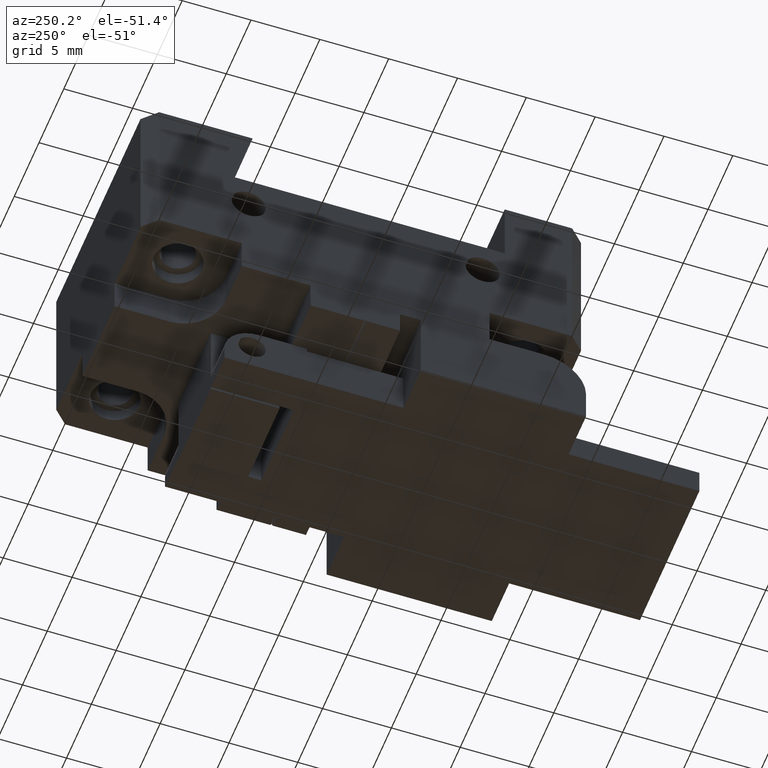
[diagram: clean part render]
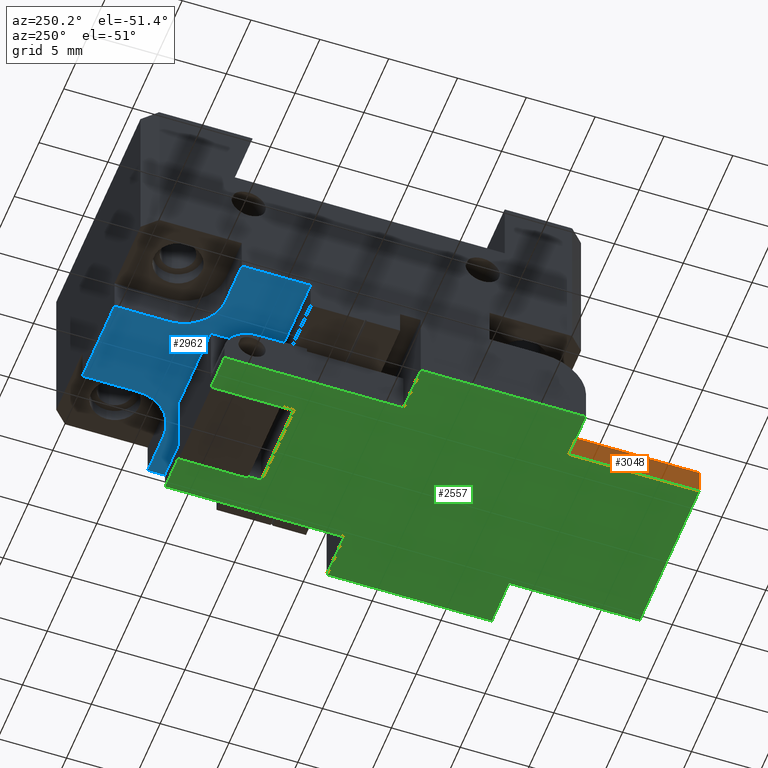
[diagram: same view with three faces highlighted in distinct colors, each labeled with its STEP entity id]
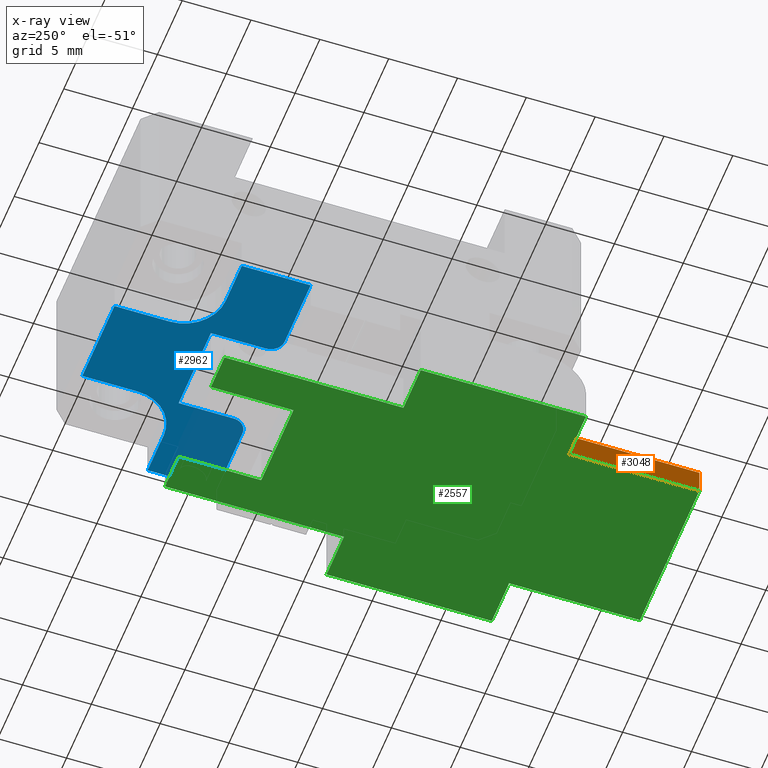
[diagram: x-ray of the same camera — body ghosted, the three highlighted faces saturated]
A machine part, auxiliary view with three faces highlighted in distinct colors.
The next image is the same camera in x-ray (body ghosted, the three faces saturated) — at least one of them is partly hidden behind the body in this view.
Their STEP definitions:

[orange] entity #3048 — the highlighted planar face has unit normal (-1, 0, 0).
#95 = LINE ( 'NONE', #1185, #2649 ) ;
#138 = CARTESIAN_POINT ( 'NONE',  ( -10.90605340999041000, -23.04697329500456600, 22.70000000000000600 ) ) ;
#404 = CARTESIAN_POINT ( 'NONE',  ( -10.90605340999041000, -5.796973295004572300, 22.70000000000000600 ) ) ;
#425 = ORIENTED_EDGE ( 'NONE', *, *, #1873, .F. ) ;
#445 = ORIENTED_EDGE ( 'NONE', *, *, #2481, .F. ) ;
#475 = DIRECTION ( 'NONE',  ( -0.0000000000000000000, -0.0000000000000000000, -1.000000000000000000 ) ) ;
#503 = VECTOR ( 'NONE', #475, 1000.000000000000000 ) ;
#537 = ORIENTED_EDGE ( 'NONE', *, *, #4050, .T. ) ;
#598 = VERTEX_POINT ( 'NONE', #3586 ) ;
#661 = VERTEX_POINT ( 'NONE', #2637 ) ;
#720 = PLANE ( 'NONE',  #2078 ) ;
#815 = CARTESIAN_POINT ( 'NONE',  ( -10.90605340999041000, -13.54697329500457300, 19.20000000000000600 ) ) ;
#839 = CARTESIAN_POINT ( 'NONE',  ( -10.90605340999041000, -5.796973295004572300, 17.20000000000000600 ) ) ;
#870 = CARTESIAN_POINT ( 'NONE',  ( -10.90605340999041000, -23.04697329500456600, 19.20000000000000600 ) ) ;
#960 = VERTEX_POINT ( 'NONE', #3447 ) ;
#1057 = DIRECTION ( 'NONE',  ( 0.0000000000000000000, 0.0000000000000000000, 1.000000000000000000 ) ) ;
#1185 = CARTESIAN_POINT ( 'NONE',  ( -10.90605340999041000, -13.54697329500457300, 22.70000000000000600 ) ) ;
#1873 = EDGE_CURVE ( 'NONE', #661, #598, #1965, .T. ) ;
#1965 = LINE ( 'NONE', #138, #503 ) ;
#2004 = VECTOR ( 'NONE', #3164, 1000.000000000000000 ) ;
#2078 = AXIS2_PLACEMENT_3D ( 'NONE', #404, #3057, #1057 ) ;
#2397 = EDGE_CURVE ( 'NONE', #598, #960, #2879, .T. ) ;
#2481 = EDGE_CURVE ( 'NONE', #3667, #661, #3434, .T. ) ;
#2528 = ORIENTED_EDGE ( 'NONE', *, *, #2397, .F. ) ;
#2569 = VECTOR ( 'NONE', #3867, 1000.000000000000000 ) ;
#2637 = CARTESIAN_POINT ( 'NONE',  ( -10.90605340999041000, -23.04697329500456600, 19.20000000000000600 ) ) ;
#2649 = VECTOR ( 'NONE', #4172, 1000.000000000000000 ) ;
#2879 = LINE ( 'NONE', #839, #2004 ) ;
#3048 = ADVANCED_FACE ( 'NONE', ( #4068 ), #720, .T. ) ;
#3057 = DIRECTION ( 'NONE',  ( -1.000000000000000000, 0.0000000000000000000, 0.0000000000000000000 ) ) ;
#3080 = EDGE_LOOP ( 'NONE', ( #445, #537, #2528, #425 ) ) ;
#3164 = DIRECTION ( 'NONE',  ( 0.0000000000000000000, 1.000000000000000000, -0.0000000000000000000 ) ) ;
#3434 = LINE ( 'NONE', #870, #2569 ) ;
#3447 = CARTESIAN_POINT ( 'NONE',  ( -10.90605340999041000, -13.54697329500457300, 17.20000000000000600 ) ) ;
#3586 = CARTESIAN_POINT ( 'NONE',  ( -10.90605340999041000, -23.04697329500456600, 17.20000000000000600 ) ) ;
#3667 = VERTEX_POINT ( 'NONE', #815 ) ;
#3867 = DIRECTION ( 'NONE',  ( -0.0000000000000000000, -1.000000000000000000, -0.0000000000000000000 ) ) ;
#4050 = EDGE_CURVE ( 'NONE', #3667, #960, #95, .T. ) ;
#4068 = FACE_OUTER_BOUND ( 'NONE', #3080, .T. ) ;
#4172 = DIRECTION ( 'NONE',  ( -0.0000000000000000000, -0.0000000000000000000, -1.000000000000000000 ) ) ;

[blue] entity #2962 — the highlighted planar face has unit normal (0, 0, -1).
#16 = PLANE ( 'NONE',  #3927 ) ;
#69 = VECTOR ( 'NONE', #108, 1000.000000000000000 ) ;
#108 = DIRECTION ( 'NONE',  ( -1.887379141862766100E-015, 1.000000000000000000, 0.0000000000000000000 ) ) ;
#128 = DIRECTION ( 'NONE',  ( -1.763470322150137200E-015, 1.000000000000000000, 0.0000000000000000000 ) ) ;
#131 = CARTESIAN_POINT ( 'NONE',  ( -1.656053409990433800, 11.45302670499541100, 23.10000000000000100 ) ) ;
#146 = AXIS2_PLACEMENT_3D ( 'NONE', #173, #2499, #507 ) ;
#173 = CARTESIAN_POINT ( 'NONE',  ( -0.6560534099904271600, 7.453026704995423300, 23.10000000000000100 ) ) ;
#192 = LINE ( 'NONE', #3610, #1859 ) ;
#215 = VERTEX_POINT ( 'NONE', #304 ) ;
#230 = DIRECTION ( 'NONE',  ( 0.0000000000000000000, 0.0000000000000000000, -1.000000000000000000 ) ) ;
#236 = VECTOR ( 'NONE', #3409, 1000.000000000000000 ) ;
#271 = CARTESIAN_POINT ( 'NONE',  ( -14.40605340999046500, 18.45302670499543000, 23.10000000000000100 ) ) ;
#304 = CARTESIAN_POINT ( 'NONE',  ( -14.40605340999046300, 11.45302670499545700, 23.10000000000000100 ) ) ;
#309 = CARTESIAN_POINT ( 'NONE',  ( 4.593946590009558400, 18.45302670499543800, 23.10000000000000100 ) ) ;
#319 = VERTEX_POINT ( 'NONE', #1420 ) ;
#339 = CARTESIAN_POINT ( 'NONE',  ( -8.156053409990464700, 18.45302670499543400, 23.10000000000000100 ) ) ;
#348 = DIRECTION ( 'NONE',  ( 0.0000000000000000000, 0.0000000000000000000, -1.000000000000000000 ) ) ;
#356 = DIRECTION ( 'NONE',  ( 1.763470322150137200E-015, -1.000000000000000000, -0.0000000000000000000 ) ) ;
#507 = DIRECTION ( 'NONE',  ( -1.000000000000000000, 1.734723475976807100E-015, 0.0000000000000000000 ) ) ;
#577 = VERTEX_POINT ( 'NONE', #4288 ) ;
#604 = LINE ( 'NONE', #4247, #3732 ) ;
#608 = LINE ( 'NONE', #3426, #3257 ) ;
#697 = VERTEX_POINT ( 'NONE', #3045 ) ;
#764 = CARTESIAN_POINT ( 'NONE',  ( 1.343946590009572800, 11.45302670499543800, 23.10000000000000100 ) ) ;
#767 = VERTEX_POINT ( 'NONE', #1544 ) ;
#808 = CIRCLE ( 'NONE', #3538, 1.000000000000000900 ) ;
#812 = LINE ( 'NONE', #339, #3358 ) ;
#936 = VERTEX_POINT ( 'NONE', #764 ) ;
#980 = CARTESIAN_POINT ( 'NONE',  ( -1.656053409990439800, 14.45302670499541300, 23.10000000000000100 ) ) ;
#1038 = VERTEX_POINT ( 'NONE', #3646 ) ;
#1056 = AXIS2_PLACEMENT_3D ( 'NONE', #1216, #3540, #1551 ) ;
#1109 = LINE ( 'NONE', #2098, #236 ) ;
#1112 = DIRECTION ( 'NONE',  ( -1.000000000000000000, 1.332267629550187800E-015, 0.0000000000000000000 ) ) ;
#1199 = VERTEX_POINT ( 'NONE', #1609 ) ;
#1214 = VERTEX_POINT ( 'NONE', #1877 ) ;
#1216 = CARTESIAN_POINT ( 'NONE',  ( 1.343946590009558900, 14.45302670499543600, 23.10000000000000100 ) ) ;
#1224 = CARTESIAN_POINT ( 'NONE',  ( -9.156053409990413200, 6.453026704995445500, 23.10000000000000100 ) ) ;
#1262 = DIRECTION ( 'NONE',  ( -0.0000000000000000000, -0.0000000000000000000, 1.000000000000000000 ) ) ;
#1285 = LINE ( 'NONE', #271, #3052 ) ;
#1313 = CARTESIAN_POINT ( 'NONE',  ( -11.15605340999044000, 11.45302670499543400, 23.10000000000000100 ) ) ;
#1317 = EDGE_CURVE ( 'NONE', #3436, #215, #3455, .T. ) ;
#1337 = EDGE_CURVE ( 'NONE', #697, #1830, #808, .T. ) ;
#1391 = EDGE_CURVE ( 'NONE', #1199, #215, #1285, .T. ) ;
#1392 = VECTOR ( 'NONE', #128, 1000.000000000000000 ) ;
#1415 = EDGE_CURVE ( 'NONE', #319, #697, #604, .T. ) ;
#1420 = CARTESIAN_POINT ( 'NONE',  ( -8.156053409990441600, 11.45302670499545900, 23.10000000000000100 ) ) ;
#1435 = CIRCLE ( 'NONE', #1743, 2.999999999999999100 ) ;
#1467 = EDGE_CURVE ( 'NONE', #1830, #1199, #192, .T. ) ;
#1469 = ORIENTED_EDGE ( 'NONE', *, *, #1415, .T. ) ;
#1471 = ORIENTED_EDGE ( 'NONE', *, *, #4186, .T. ) ;
#1478 = DIRECTION ( 'NONE',  ( -1.000000000000000000, 1.332267629550187800E-015, 0.0000000000000000000 ) ) ;
#1544 = CARTESIAN_POINT ( 'NONE',  ( 4.593946590009582400, 6.453026704995411800, 23.10000000000000100 ) ) ;
#1551 = DIRECTION ( 'NONE',  ( -1.000000000000000000, -8.673617379884035500E-015, 0.0000000000000000000 ) ) ;
#1609 = CARTESIAN_POINT ( 'NONE',  ( -14.40605340999041700, 6.453026704995457100, 23.10000000000000100 ) ) ;
#1743 = AXIS2_PLACEMENT_3D ( 'NONE', #3239, #1262, #3587 ) ;
#1760 = EDGE_CURVE ( 'NONE', #2107, #319, #4130, .T. ) ;
#1829 = ORIENTED_EDGE ( 'NONE', *, *, #3813, .T. ) ;
#1830 = VERTEX_POINT ( 'NONE', #1224 ) ;
#1859 = VECTOR ( 'NONE', #1478, 1000.000000000000000 ) ;
#1877 = CARTESIAN_POINT ( 'NONE',  ( -1.656053409990427200, 7.453026704995434800, 23.10000000000000100 ) ) ;
#1881 = ORIENTED_EDGE ( 'NONE', *, *, #3944, .F. ) ;
#1920 = VERTEX_POINT ( 'NONE', #3470 ) ;
#1940 = ORIENTED_EDGE ( 'NONE', *, *, #1467, .T. ) ;
#1982 = VECTOR ( 'NONE', #3808, 1000.000000000000000 ) ;
#2015 = CARTESIAN_POINT ( 'NONE',  ( -0.6560534099904255000, 6.453026704995423300, 23.10000000000000100 ) ) ;
#2032 = VECTOR ( 'NONE', #3293, 1000.000000000000000 ) ;
#2046 = EDGE_LOOP ( 'NONE', ( #1469, #3949, #1940, #3107, #3246, #1471, #3924, #1829, #1881, #3280, #2631, #2069, #3945, #2140, #3059, #2063 ) ) ;
#2063 = ORIENTED_EDGE ( 'NONE', *, *, #1760, .T. ) ;
#2069 = ORIENTED_EDGE ( 'NONE', *, *, #3647, .T. ) ;
#2098 = CARTESIAN_POINT ( 'NONE',  ( 4.593946590009582400, 6.453026704995411800, 23.10000000000000100 ) ) ;
#2107 = VERTEX_POINT ( 'NONE', #131 ) ;
#2140 = ORIENTED_EDGE ( 'NONE', *, *, #2805, .T. ) ;
#2144 = CARTESIAN_POINT ( 'NONE',  ( 4.593946590009558400, 18.45302670499543800, 23.10000000000000100 ) ) ;
#2225 = CARTESIAN_POINT ( 'NONE',  ( -9.156053409990413200, 7.453026704995445500, 23.10000000000000100 ) ) ;
#2290 = EDGE_CURVE ( 'NONE', #1214, #2107, #2727, .T. ) ;
#2296 = LINE ( 'NONE', #2144, #1982 ) ;
#2342 = CARTESIAN_POINT ( 'NONE',  ( -4.906053409990414100, 2.453026704995434000, 23.10000000000000100 ) ) ;
#2371 = CIRCLE ( 'NONE', #146, 1.000000000000000000 ) ;
#2440 = CARTESIAN_POINT ( 'NONE',  ( -1.656053409990426700, 6.453026704995434800, 23.10000000000000100 ) ) ;
#2499 = DIRECTION ( 'NONE',  ( 0.0000000000000000000, 0.0000000000000000000, -1.000000000000000000 ) ) ;
#2555 = DIRECTION ( 'NONE',  ( -1.000000000000000000, 1.734723475976805500E-015, 0.0000000000000000000 ) ) ;
#2597 = DIRECTION ( 'NONE',  ( -1.887379141862766100E-015, 1.000000000000000000, 0.0000000000000000000 ) ) ;
#2608 = DIRECTION ( 'NONE',  ( 1.887379141862766100E-015, -1.000000000000000000, -0.0000000000000000000 ) ) ;
#2631 = ORIENTED_EDGE ( 'NONE', *, *, #3938, .F. ) ;
#2632 = FACE_OUTER_BOUND ( 'NONE', #2046, .T. ) ;
#2670 = DIRECTION ( 'NONE',  ( -1.000000000000000000, 1.332267629550187800E-015, 0.0000000000000000000 ) ) ;
#2727 = LINE ( 'NONE', #2440, #69 ) ;
#2805 = EDGE_CURVE ( 'NONE', #3895, #1214, #2371, .T. ) ;
#2872 = DIRECTION ( 'NONE',  ( -1.000000000000000000, 1.332267629550187800E-015, 0.0000000000000000000 ) ) ;
#2904 = LINE ( 'NONE', #309, #2032 ) ;
#2924 = VERTEX_POINT ( 'NONE', #980 ) ;
#2962 = ADVANCED_FACE ( 'NONE', ( #2632 ), #16, .T. ) ;
#3045 = CARTESIAN_POINT ( 'NONE',  ( -8.156053409990416700, 7.453026704995433100, 23.10000000000000100 ) ) ;
#3052 = VECTOR ( 'NONE', #2597, 1000.000000000000000 ) ;
#3059 = ORIENTED_EDGE ( 'NONE', *, *, #2290, .T. ) ;
#3102 = EDGE_CURVE ( 'NONE', #767, #3895, #1109, .T. ) ;
#3107 = ORIENTED_EDGE ( 'NONE', *, *, #1391, .T. ) ;
#3180 = CARTESIAN_POINT ( 'NONE',  ( -1.656053409990434700, 11.45302670499541100, 23.10000000000000100 ) ) ;
#3239 = CARTESIAN_POINT ( 'NONE',  ( -11.15605340999044000, 14.45302670499543200, 23.10000000000000100 ) ) ;
#3246 = ORIENTED_EDGE ( 'NONE', *, *, #1317, .F. ) ;
#3247 = VECTOR ( 'NONE', #3515, 1000.000000000000000 ) ;
#3257 = VECTOR ( 'NONE', #1112, 1000.000000000000000 ) ;
#3280 = ORIENTED_EDGE ( 'NONE', *, *, #4076, .T. ) ;
#3293 = DIRECTION ( 'NONE',  ( 1.000000000000000000, -1.332267629550187800E-015, -0.0000000000000000000 ) ) ;
#3358 = VECTOR ( 'NONE', #356, 1000.000000000000000 ) ;
#3409 = DIRECTION ( 'NONE',  ( -1.000000000000000000, 1.332267629550187800E-015, 0.0000000000000000000 ) ) ;
#3426 = CARTESIAN_POINT ( 'NONE',  ( 4.593946590009560200, 11.45302670499541300, 23.10000000000000100 ) ) ;
#3436 = VERTEX_POINT ( 'NONE', #1313 ) ;
#3455 = LINE ( 'NONE', #3857, #4238 ) ;
#3470 = CARTESIAN_POINT ( 'NONE',  ( 4.593946590009558400, 11.45302670499541300, 23.10000000000000100 ) ) ;
#3515 = DIRECTION ( 'NONE',  ( -1.000000000000000000, 1.332267629550187800E-015, 0.0000000000000000000 ) ) ;
#3538 = AXIS2_PLACEMENT_3D ( 'NONE', #2225, #230, #2555 ) ;
#3540 = DIRECTION ( 'NONE',  ( -0.0000000000000000000, -0.0000000000000000000, 1.000000000000000000 ) ) ;
#3587 = DIRECTION ( 'NONE',  ( -1.000000000000000000, 1.156482317317871700E-015, 0.0000000000000000000 ) ) ;
#3610 = CARTESIAN_POINT ( 'NONE',  ( -8.156053409990414900, 6.453026704995433100, 23.10000000000000100 ) ) ;
#3646 = CARTESIAN_POINT ( 'NONE',  ( -8.156053409990464700, 18.45302670499543400, 23.10000000000000100 ) ) ;
#3647 = EDGE_CURVE ( 'NONE', #1920, #767, #2296, .T. ) ;
#3732 = VECTOR ( 'NONE', #2608, 1000.000000000000000 ) ;
#3808 = DIRECTION ( 'NONE',  ( 1.742818852198032300E-015, -1.000000000000000000, -0.0000000000000000000 ) ) ;
#3813 = EDGE_CURVE ( 'NONE', #1038, #577, #2904, .T. ) ;
#3857 = CARTESIAN_POINT ( 'NONE',  ( -14.40605340999046300, 11.45302670499545700, 23.10000000000000100 ) ) ;
#3886 = EDGE_CURVE ( 'NONE', #1038, #4225, #812, .T. ) ;
#3895 = VERTEX_POINT ( 'NONE', #2015 ) ;
#3924 = ORIENTED_EDGE ( 'NONE', *, *, #3886, .F. ) ;
#3927 = AXIS2_PLACEMENT_3D ( 'NONE', #2342, #348, #2670 ) ;
#3929 = CARTESIAN_POINT ( 'NONE',  ( -8.156053409990441600, 14.45302670499546100, 23.10000000000000100 ) ) ;
#3938 = EDGE_CURVE ( 'NONE', #1920, #936, #608, .T. ) ;
#3944 = EDGE_CURVE ( 'NONE', #2924, #577, #4035, .T. ) ;
#3945 = ORIENTED_EDGE ( 'NONE', *, *, #3102, .T. ) ;
#3949 = ORIENTED_EDGE ( 'NONE', *, *, #1337, .T. ) ;
#4035 = LINE ( 'NONE', #4096, #1392 ) ;
#4076 = EDGE_CURVE ( 'NONE', #2924, #936, #4294, .T. ) ;
#4096 = CARTESIAN_POINT ( 'NONE',  ( -1.656053409990441100, 18.45302670499543400, 23.10000000000000100 ) ) ;
#4130 = LINE ( 'NONE', #3180, #3247 ) ;
#4186 = EDGE_CURVE ( 'NONE', #3436, #4225, #1435, .T. ) ;
#4225 = VERTEX_POINT ( 'NONE', #3929 ) ;
#4238 = VECTOR ( 'NONE', #2872, 1000.000000000000000 ) ;
#4247 = CARTESIAN_POINT ( 'NONE',  ( -8.156053409990414900, 6.453026704995433100, 23.10000000000000100 ) ) ;
#4288 = CARTESIAN_POINT ( 'NONE',  ( -1.656053409990441100, 18.45302670499543400, 23.10000000000000100 ) ) ;
#4294 = CIRCLE ( 'NONE', #1056, 3.000000000000000000 ) ;

[green] entity #2557 — the highlighted planar face has unit normal (-0, 0, 1).
#1 = EDGE_CURVE ( 'NONE', #3598, #567, #624, .T. ) ;
#33 = EDGE_CURVE ( 'NONE', #2479, #317, #1311, .T. ) ;
#121 = VECTOR ( 'NONE', #1194, 1000.000000000000000 ) ;
#168 = CARTESIAN_POINT ( 'NONE',  ( -4.906053409990408700, -23.04697329500456600, 17.20000000000000600 ) ) ;
#208 = DIRECTION ( 'NONE',  ( -1.000000000000000000, 0.0000000000000000000, 0.0000000000000000000 ) ) ;
#260 = VERTEX_POINT ( 'NONE', #683 ) ;
#278 = EDGE_CURVE ( 'NONE', #1685, #960, #376, .T. ) ;
#305 = DIRECTION ( 'NONE',  ( 0.0000000000000000000, 1.000000000000000000, -0.0000000000000000000 ) ) ;
#311 = CARTESIAN_POINT ( 'NONE',  ( -8.156053409990406100, 11.45302670499543200, 17.20000000000000600 ) ) ;
#317 = VERTEX_POINT ( 'NONE', #1085 ) ;
#325 = ORIENTED_EDGE ( 'NONE', *, *, #2397, .T. ) ;
#341 = CARTESIAN_POINT ( 'NONE',  ( -10.90605340999041000, -5.796973295004572300, 17.20000000000000600 ) ) ;
#376 = LINE ( 'NONE', #2913, #2041 ) ;
#406 = CARTESIAN_POINT ( 'NONE',  ( 1.093946590009589900, -1.546973295004566900, 17.20000000000000600 ) ) ;
#437 = ORIENTED_EDGE ( 'NONE', *, *, #33, .F. ) ;
#454 = AXIS2_PLACEMENT_3D ( 'NONE', #1693, #3997, #2031 ) ;
#505 = EDGE_CURVE ( 'NONE', #1183, #3418, #1036, .T. ) ;
#515 = DIRECTION ( 'NONE',  ( 1.000000000000000000, -9.912705577010348200E-016, 0.0000000000000000000 ) ) ;
#545 = CARTESIAN_POINT ( 'NONE',  ( 1.093946590009589900, -23.04697329500456600, 17.20000000000000600 ) ) ;
#549 = ORIENTED_EDGE ( 'NONE', *, *, #3493, .T. ) ;
#567 = VERTEX_POINT ( 'NONE', #667 ) ;
#593 = VECTOR ( 'NONE', #1490, 1000.000000000000000 ) ;
#594 = VERTEX_POINT ( 'NONE', #3237 ) ;
#598 = VERTEX_POINT ( 'NONE', #3586 ) ;
#624 = LINE ( 'NONE', #4267, #4052 ) ;
#667 = CARTESIAN_POINT ( 'NONE',  ( -1.656053409990407400, 11.45302670499543200, 17.20000000000000600 ) ) ;
#683 = CARTESIAN_POINT ( 'NONE',  ( -14.40605340999041500, -1.546973295004570300, 17.20000000000000600 ) ) ;
#719 = VERTEX_POINT ( 'NONE', #406 ) ;
#735 = EDGE_CURVE ( 'NONE', #2315, #567, #3607, .T. ) ;
#762 = EDGE_CURVE ( 'NONE', #719, #2315, #4263, .T. ) ;
#838 = CARTESIAN_POINT ( 'NONE',  ( -4.906053409990404300, -1.546973295004560700, 17.20000000000000600 ) ) ;
#839 = CARTESIAN_POINT ( 'NONE',  ( -10.90605340999041000, -5.796973295004572300, 17.20000000000000600 ) ) ;
#857 = DIRECTION ( 'NONE',  ( 1.000000000000000000, 2.478176394252578200E-016, 0.0000000000000000000 ) ) ;
#877 = EDGE_CURVE ( 'NONE', #260, #1685, #1318, .T. ) ;
#960 = VERTEX_POINT ( 'NONE', #3447 ) ;
#989 = ORIENTED_EDGE ( 'NONE', *, *, #877, .F. ) ;
#998 = LINE ( 'NONE', #2522, #121 ) ;
#1036 = LINE ( 'NONE', #2590, #2718 ) ;
#1085 = CARTESIAN_POINT ( 'NONE',  ( 1.093946590009589900, -13.54697329500457300, 17.20000000000000600 ) ) ;
#1102 = CARTESIAN_POINT ( 'NONE',  ( 1.093946590009589900, 11.45302670499543200, 17.20000000000000600 ) ) ;
#1183 = VERTEX_POINT ( 'NONE', #3987 ) ;
#1194 = DIRECTION ( 'NONE',  ( 1.000000000000000000, 0.0000000000000000000, 0.0000000000000000000 ) ) ;
#1218 = LINE ( 'NONE', #2523, #2115 ) ;
#1220 = LINE ( 'NONE', #3760, #2013 ) ;
#1250 = DIRECTION ( 'NONE',  ( 0.0000000000000000000, 1.000000000000000000, -0.0000000000000000000 ) ) ;
#1311 = LINE ( 'NONE', #1585, #3073 ) ;
#1318 = LINE ( 'NONE', #3393, #2982 ) ;
#1352 = PLANE ( 'NONE',  #454 ) ;
#1370 = FACE_OUTER_BOUND ( 'NONE', #1795, .T. ) ;
#1376 = VERTEX_POINT ( 'NONE', #1915 ) ;
#1424 = ORIENTED_EDGE ( 'NONE', *, *, #1, .T. ) ;
#1464 = CARTESIAN_POINT ( 'NONE',  ( -4.906053409990408700, 11.45302670499543200, 17.20000000000000600 ) ) ;
#1477 = LINE ( 'NONE', #3127, #593 ) ;
#1490 = DIRECTION ( 'NONE',  ( 1.000000000000000000, 0.0000000000000000000, 0.0000000000000000000 ) ) ;
#1579 = ORIENTED_EDGE ( 'NONE', *, *, #2426, .T. ) ;
#1585 = CARTESIAN_POINT ( 'NONE',  ( 1.093946590009589900, -5.796973295004572300, 17.20000000000000600 ) ) ;
#1591 = ORIENTED_EDGE ( 'NONE', *, *, #505, .F. ) ;
#1596 = DIRECTION ( 'NONE',  ( 1.000000000000000000, 0.0000000000000000000, 0.0000000000000000000 ) ) ;
#1634 = VECTOR ( 'NONE', #2222, 1000.000000000000000 ) ;
#1685 = VERTEX_POINT ( 'NONE', #2807 ) ;
#1693 = CARTESIAN_POINT ( 'NONE',  ( -4.906053409990408700, -5.796973295004572300, 17.20000000000000600 ) ) ;
#1729 = EDGE_CURVE ( 'NONE', #719, #3549, #3453, .T. ) ;
#1769 = ORIENTED_EDGE ( 'NONE', *, *, #762, .F. ) ;
#1795 = EDGE_LOOP ( 'NONE', ( #437, #2428, #325, #1987, #989, #3033, #549, #2445, #1591, #1579, #1424, #2664, #1769, #2876, #3999, #3023 ) ) ;
#1915 = CARTESIAN_POINT ( 'NONE',  ( -10.90605340999041000, -1.546973295004569600, 17.20000000000000600 ) ) ;
#1930 = EDGE_CURVE ( 'NONE', #598, #2479, #2640, .T. ) ;
#1981 = EDGE_CURVE ( 'NONE', #260, #1376, #1218, .T. ) ;
#1987 = ORIENTED_EDGE ( 'NONE', *, *, #278, .F. ) ;
#2004 = VECTOR ( 'NONE', #3164, 1000.000000000000000 ) ;
#2013 = VECTOR ( 'NONE', #4077, 1000.000000000000000 ) ;
#2027 = CARTESIAN_POINT ( 'NONE',  ( -10.90605340999041000, 11.45302670499543200, 17.20000000000000600 ) ) ;
#2030 = CARTESIAN_POINT ( 'NONE',  ( 4.593946590009582400, -1.546973295004570300, 17.20000000000000600 ) ) ;
#2031 = DIRECTION ( 'NONE',  ( 1.000000000000000000, 0.0000000000000000000, 0.0000000000000000000 ) ) ;
#2041 = VECTOR ( 'NONE', #1596, 1000.000000000000000 ) ;
#2115 = VECTOR ( 'NONE', #857, 1000.000000000000000 ) ;
#2169 = DIRECTION ( 'NONE',  ( 1.000000000000000000, 0.0000000000000000000, 0.0000000000000000000 ) ) ;
#2222 = DIRECTION ( 'NONE',  ( 0.0000000000000000000, 1.000000000000000000, -0.0000000000000000000 ) ) ;
#2315 = VERTEX_POINT ( 'NONE', #1102 ) ;
#2397 = EDGE_CURVE ( 'NONE', #598, #960, #2879, .T. ) ;
#2426 = EDGE_CURVE ( 'NONE', #1183, #3598, #998, .T. ) ;
#2428 = ORIENTED_EDGE ( 'NONE', *, *, #1930, .F. ) ;
#2445 = ORIENTED_EDGE ( 'NONE', *, *, #3214, .T. ) ;
#2471 = LINE ( 'NONE', #1464, #4222 ) ;
#2479 = VERTEX_POINT ( 'NONE', #545 ) ;
#2482 = VECTOR ( 'NONE', #515, 1000.000000000000000 ) ;
#2515 = VECTOR ( 'NONE', #208, 1000.000000000000000 ) ;
#2522 = CARTESIAN_POINT ( 'NONE',  ( -4.906053409990408700, 5.453026704995432200, 17.20000000000000600 ) ) ;
#2523 = CARTESIAN_POINT ( 'NONE',  ( -4.906053409990409600, -1.546973295004567800, 17.20000000000000600 ) ) ;
#2557 = ADVANCED_FACE ( 'NONE', ( #1370 ), #1352, .F. ) ;
#2590 = CARTESIAN_POINT ( 'NONE',  ( -8.156053409990406100, -5.796973295004572300, 17.20000000000000600 ) ) ;
#2640 = LINE ( 'NONE', #168, #4283 ) ;
#2664 = ORIENTED_EDGE ( 'NONE', *, *, #735, .F. ) ;
#2718 = VECTOR ( 'NONE', #3579, 1000.000000000000000 ) ;
#2784 = EDGE_CURVE ( 'NONE', #317, #594, #1477, .T. ) ;
#2807 = CARTESIAN_POINT ( 'NONE',  ( -14.40605340999041500, -13.54697329500457300, 17.20000000000000600 ) ) ;
#2876 = ORIENTED_EDGE ( 'NONE', *, *, #1729, .T. ) ;
#2879 = LINE ( 'NONE', #839, #2004 ) ;
#2913 = CARTESIAN_POINT ( 'NONE',  ( -4.906053409990408700, -13.54697329500457300, 17.20000000000000600 ) ) ;
#2982 = VECTOR ( 'NONE', #4065, 1000.000000000000000 ) ;
#2999 = DIRECTION ( 'NONE',  ( 0.0000000000000000000, 1.000000000000000000, -0.0000000000000000000 ) ) ;
#3023 = ORIENTED_EDGE ( 'NONE', *, *, #2784, .F. ) ;
#3033 = ORIENTED_EDGE ( 'NONE', *, *, #1981, .T. ) ;
#3073 = VECTOR ( 'NONE', #1250, 1000.000000000000000 ) ;
#3110 = EDGE_CURVE ( 'NONE', #3549, #594, #1220, .T. ) ;
#3127 = CARTESIAN_POINT ( 'NONE',  ( -4.906053409990408700, -13.54697329500457300, 17.20000000000000600 ) ) ;
#3164 = DIRECTION ( 'NONE',  ( 0.0000000000000000000, 1.000000000000000000, -0.0000000000000000000 ) ) ;
#3214 = EDGE_CURVE ( 'NONE', #3901, #3418, #2471, .T. ) ;
#3237 = CARTESIAN_POINT ( 'NONE',  ( 4.593946590009585900, -13.54697329500457300, 17.20000000000000600 ) ) ;
#3261 = VECTOR ( 'NONE', #2999, 1000.000000000000000 ) ;
#3393 = CARTESIAN_POINT ( 'NONE',  ( -14.40605340999041500, -5.796973295004572300, 17.20000000000000600 ) ) ;
#3418 = VERTEX_POINT ( 'NONE', #311 ) ;
#3443 = CARTESIAN_POINT ( 'NONE',  ( -1.656053409990407400, 5.453026704995432200, 17.20000000000000600 ) ) ;
#3447 = CARTESIAN_POINT ( 'NONE',  ( -10.90605340999041000, -13.54697329500457300, 17.20000000000000600 ) ) ;
#3453 = LINE ( 'NONE', #838, #2482 ) ;
#3493 = EDGE_CURVE ( 'NONE', #1376, #3901, #4146, .T. ) ;
#3549 = VERTEX_POINT ( 'NONE', #2030 ) ;
#3579 = DIRECTION ( 'NONE',  ( 0.0000000000000000000, 1.000000000000000000, -0.0000000000000000000 ) ) ;
#3586 = CARTESIAN_POINT ( 'NONE',  ( -10.90605340999041000, -23.04697329500456600, 17.20000000000000600 ) ) ;
#3598 = VERTEX_POINT ( 'NONE', #3443 ) ;
#3607 = LINE ( 'NONE', #4178, #2515 ) ;
#3760 = CARTESIAN_POINT ( 'NONE',  ( 4.593946590009584200, -5.796973295004569600, 17.20000000000000600 ) ) ;
#3802 = DIRECTION ( 'NONE',  ( 1.000000000000000000, 0.0000000000000000000, 0.0000000000000000000 ) ) ;
#3901 = VERTEX_POINT ( 'NONE', #2027 ) ;
#3987 = CARTESIAN_POINT ( 'NONE',  ( -8.156053409990406100, 5.453026704995432200, 17.20000000000000600 ) ) ;
#3997 = DIRECTION ( 'NONE',  ( -0.0000000000000000000, 0.0000000000000000000, 1.000000000000000000 ) ) ;
#3999 = ORIENTED_EDGE ( 'NONE', *, *, #3110, .T. ) ;
#4052 = VECTOR ( 'NONE', #305, 1000.000000000000000 ) ;
#4065 = DIRECTION ( 'NONE',  ( 0.0000000000000000000, -1.000000000000000000, 0.0000000000000000000 ) ) ;
#4077 = DIRECTION ( 'NONE',  ( 2.891205793294677800E-016, -1.000000000000000000, 0.0000000000000000000 ) ) ;
#4146 = LINE ( 'NONE', #341, #3261 ) ;
#4178 = CARTESIAN_POINT ( 'NONE',  ( -4.906053409990408700, 11.45302670499543200, 17.20000000000000600 ) ) ;
#4191 = CARTESIAN_POINT ( 'NONE',  ( 1.093946590009589900, -5.796973295004572300, 17.20000000000000600 ) ) ;
#4222 = VECTOR ( 'NONE', #3802, 1000.000000000000000 ) ;
#4263 = LINE ( 'NONE', #4191, #1634 ) ;
#4267 = CARTESIAN_POINT ( 'NONE',  ( -1.656053409990407400, -5.796973295004572300, 17.20000000000000600 ) ) ;
#4283 = VECTOR ( 'NONE', #2169, 1000.000000000000000 ) ;